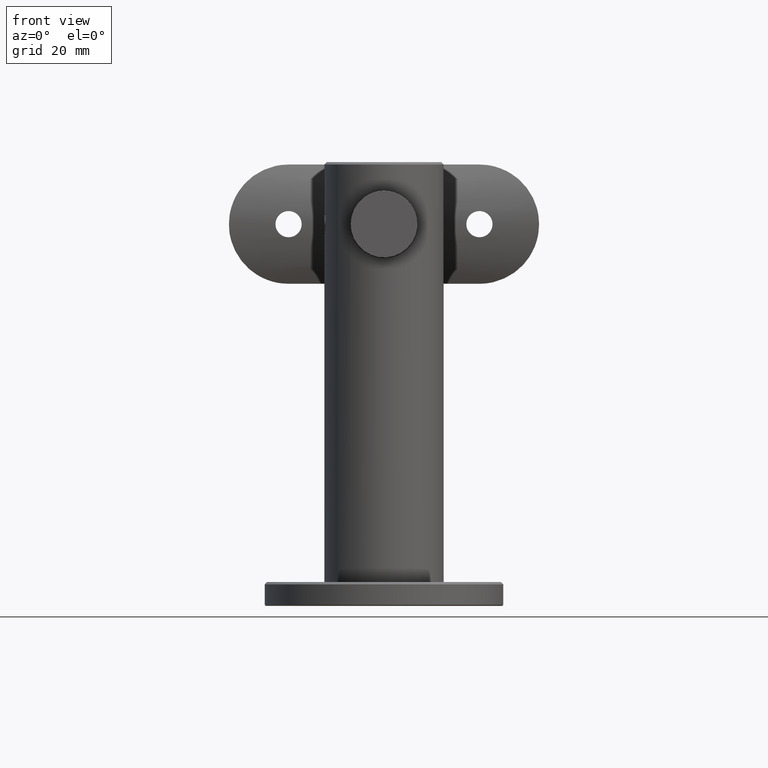
[diagram: clean part render]
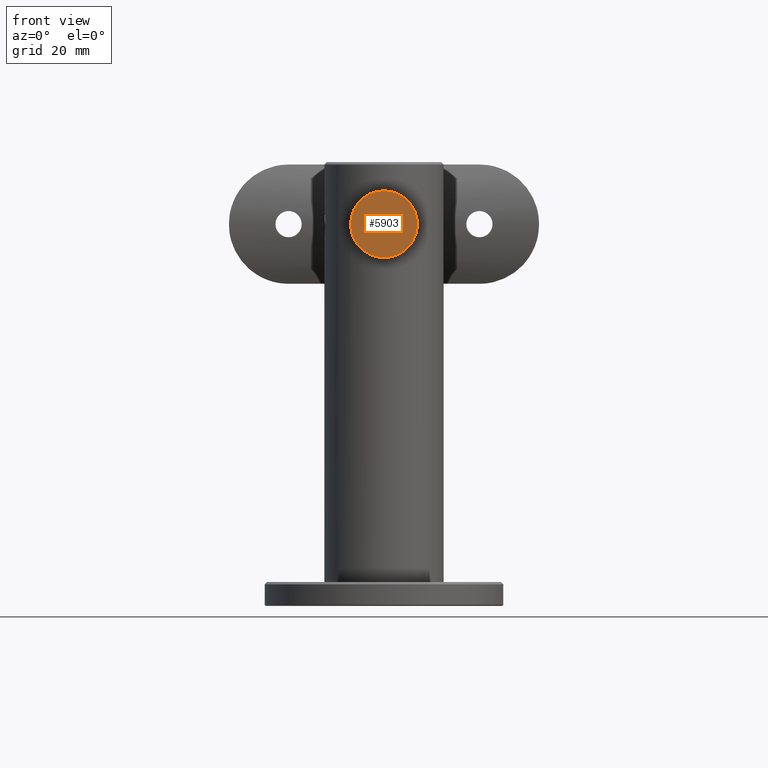
[diagram: same view with one face highlighted and labeled with its STEP entity id]
A machine part, front view. The second image highlights one B-rep face of the part: STEP entity #5903.
In plain terms, the highlighted planar face has unit normal (0, 1, 0).
Its self-contained STEP definition (entity closure, byte-faithful):
#1435 = CARTESIAN_POINT ( 'NONE',  ( 0.0000000000000000000, 0.0000000000000000000, 6.999999999999999100 ) ) ;
#2634 = PLANE ( 'NONE',  #17021 ) ;
#4229 = CARTESIAN_POINT ( 'NONE',  ( 0.0000000000000000000, 0.0000000000000000000, 0.0000000000000000000 ) ) ;
#4906 = VERTEX_POINT ( 'NONE', #1435 ) ;
#5797 = CIRCLE ( 'NONE', #11316, 6.999999999999999100 ) ;
#5903 = ADVANCED_FACE ( 'NONE', ( #17125 ), #2634, .F. ) ;
#7790 = CARTESIAN_POINT ( 'NONE',  ( 0.0000000000000000000, 0.0000000000000000000, 0.0000000000000000000 ) ) ;
#9701 = EDGE_CURVE ( 'NONE', #4906, #4906, #5797, .T. ) ;
#10843 = DIRECTION ( 'NONE',  ( 0.0000000000000000000, 1.000000000000000000, 0.0000000000000000000 ) ) ;
#11316 = AXIS2_PLACEMENT_3D ( 'NONE', #7790, #10843, #12502 ) ;
#12502 = DIRECTION ( 'NONE',  ( 0.0000000000000000000, 0.0000000000000000000, 1.000000000000000000 ) ) ;
#13038 = EDGE_LOOP ( 'NONE', ( #17329 ) ) ;
#16979 = DIRECTION ( 'NONE',  ( 0.0000000000000000000, 1.000000000000000000, 0.0000000000000000000 ) ) ;
#17021 = AXIS2_PLACEMENT_3D ( 'NONE', #4229, #16979, #20273 ) ;
#17125 = FACE_OUTER_BOUND ( 'NONE', #13038, .T. ) ;
#17329 = ORIENTED_EDGE ( 'NONE', *, *, #9701, .F. ) ;
#20273 = DIRECTION ( 'NONE',  ( 0.0000000000000000000, -0.0000000000000000000, 1.000000000000000000 ) ) ;